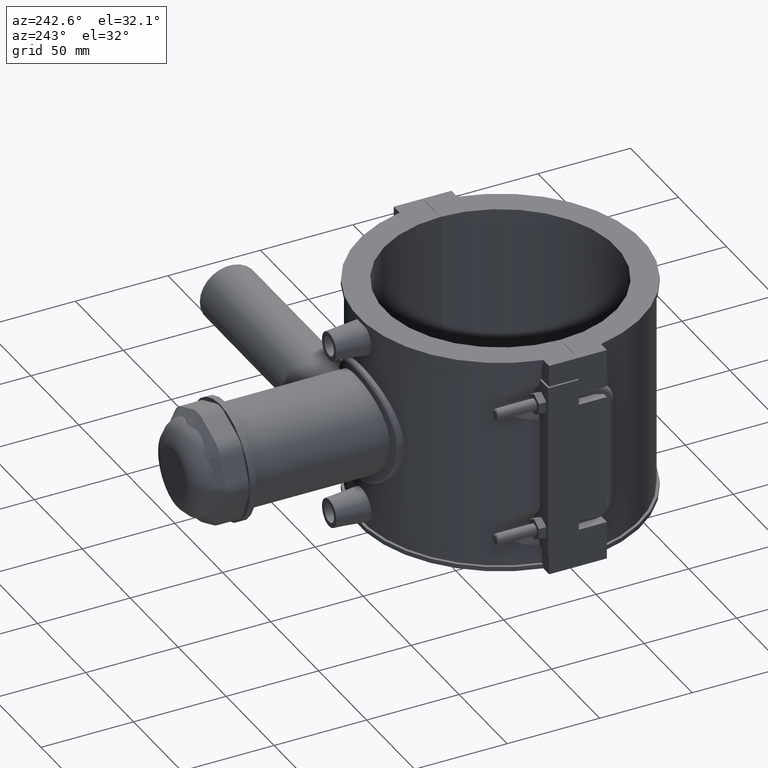
[diagram: clean part render]
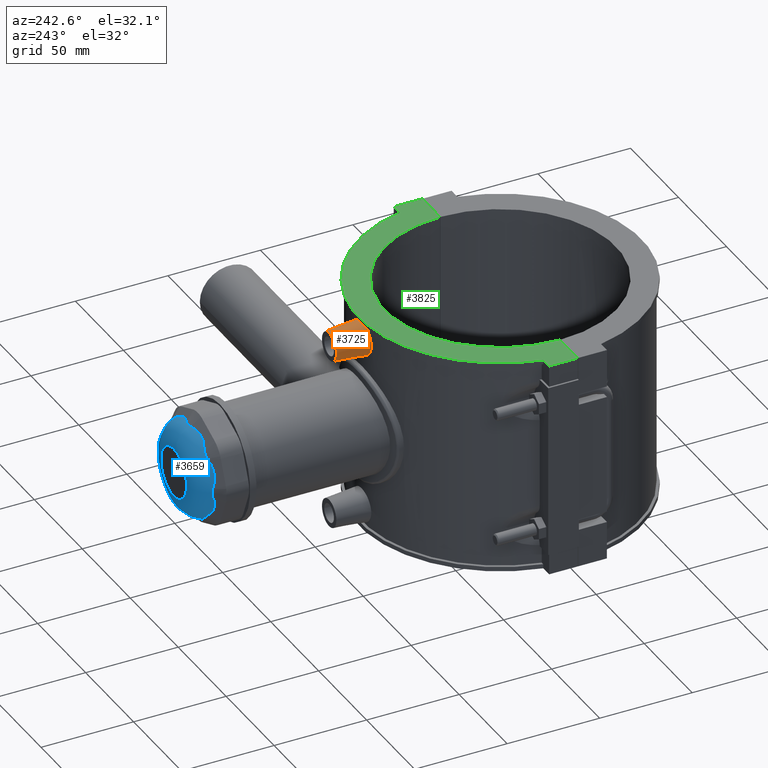
[diagram: same view with three faces highlighted in distinct colors, each labeled with its STEP entity id]
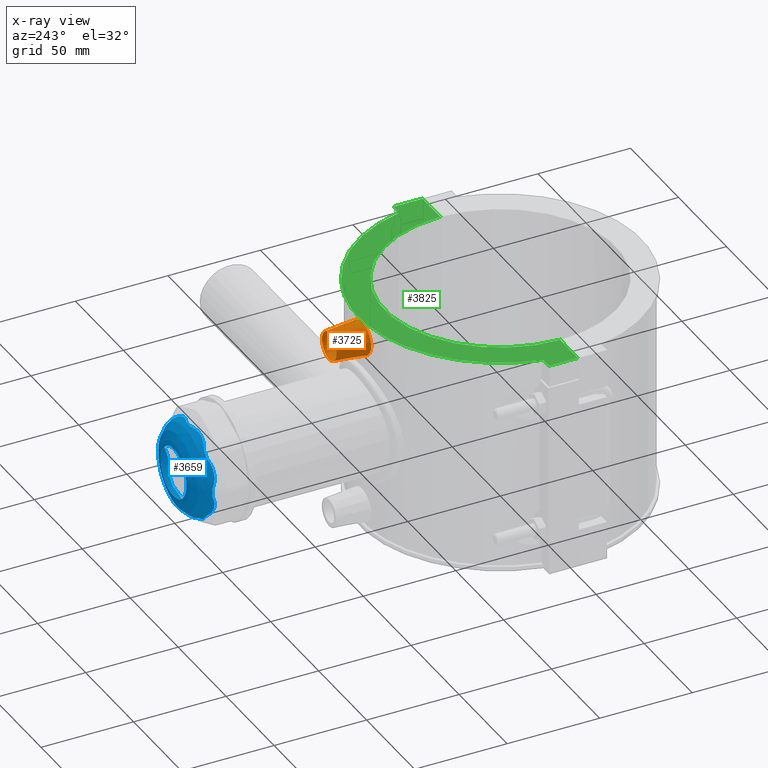
[diagram: x-ray of the same camera — body ghosted, the three highlighted faces saturated]
A machine part, auxiliary view with three faces highlighted in distinct colors.
The next image is the same camera in x-ray (body ghosted, the three faces saturated) — at least one of them is partly hidden behind the body in this view.
Their STEP definitions:

[orange] entity #3725 — the highlighted conical surface has half-angle 5 deg.
#651=CONICAL_SURFACE('',#3998,7.5,5.);
#849=CIRCLE('',#3999,7.5);
#927=FACE_BOUND('',#1323,.T.);
#1076=FACE_OUTER_BOUND('',#1322,.T.);
#1322=EDGE_LOOP('',(#3051));
#1323=EDGE_LOOP('',(#3052));
#1512=B_SPLINE_CURVE_WITH_KNOTS('',3,(#6322,#6323,#6324,#6325,#6326,#6327,
#6328,#6329,#6330,#6331,#6332,#6333,#6334,#6335,#6336,#6337,#6338,#6339,
#6340,#6341,#6342,#6343,#6344,#6345,#6346,#6347,#6348,#6349,#6350,#6351,
#6352,#6353,#6354,#6355),.UNSPECIFIED.,.T.,.F.,(4,2,2,2,2,2,2,2,2,2,2,2,
2,2,2,2,4),(0.,0.341668696491551,0.683337392983103,1.02458425500419,1.36583111702527,
1.70707797904636,2.04832484106744,2.38999353755899,2.73166223405054,3.0733309305421,
3.41499962703365,3.75624648905473,4.09749335107582,4.4387402130969,4.77998707511798,
5.12165577160954,5.46332446810109),.UNSPECIFIED.);
#1687=VERTEX_POINT('',#6321);
#1809=VERTEX_POINT('',#7349);
#2098=EDGE_CURVE('',#1687,#1687,#1512,.T.);
#2266=EDGE_CURVE('',#1809,#1809,#849,.T.);
#3051=ORIENTED_EDGE('',*,*,#2266,.F.);
#3052=ORIENTED_EDGE('',*,*,#2098,.F.);
#3725=ADVANCED_FACE('',(#1076,#927),#651,.T.);
#3998=AXIS2_PLACEMENT_3D('',#7348,#4689,#4690);
#3999=AXIS2_PLACEMENT_3D('',#7350,#4691,#4692);
#4689=DIRECTION('center_axis',(0.,-1.,0.));
#4690=DIRECTION('ref_axis',(1.,0.,0.));
#4691=DIRECTION('center_axis',(0.,1.,0.));
#4692=DIRECTION('ref_axis',(1.,0.,0.));
#6321=CARTESIAN_POINT('',(9.0793092533136,74.4484126323906,47.2));
#6322=CARTESIAN_POINT('Ctrl Pts',(-9.0793092533136,74.4484126323906,47.2));
#6323=CARTESIAN_POINT('Ctrl Pts',(-9.0793092533136,74.4484126323906,46.0611043450282));
#6324=CARTESIAN_POINT('Ctrl Pts',(-8.84946113589686,74.4775577133318,44.8478007545603));
#6325=CARTESIAN_POINT('Ctrl Pts',(-7.91818152844378,74.5823166978625,42.6193985559919));
#6326=CARTESIAN_POINT('Ctrl Pts',(-7.21684973308405,74.6563698188581,41.604185186368));
#6327=CARTESIAN_POINT('Ctrl Pts',(-5.60331245542121,74.7947708340694,40.0044126497905));
#6328=CARTESIAN_POINT('Ctrl Pts',(-4.58361091651927,74.8681481668674,39.3122964536791));
#6329=CARTESIAN_POINT('Ctrl Pts',(-2.35073887920452,74.9714820813101,38.3945491238737));
#6330=CARTESIAN_POINT('Ctrl Pts',(-1.13748954007028,75.,38.1689483882964));
#6331=CARTESIAN_POINT('Ctrl Pts',(1.13748954007028,75.,38.1689483882964));
#6332=CARTESIAN_POINT('Ctrl Pts',(2.35073887920452,74.9714820813101,38.3945491238737));
#6333=CARTESIAN_POINT('Ctrl Pts',(4.58361091651927,74.8681481668674,39.3122964536791));
#6334=CARTESIAN_POINT('Ctrl Pts',(5.60331245542121,74.7947708340694,40.0044126497905));
#6335=CARTESIAN_POINT('Ctrl Pts',(7.21684973308405,74.6563698188581,41.604185186368));
#6336=CARTESIAN_POINT('Ctrl Pts',(7.91818152844378,74.5823166978625,42.6193985559919));
#6337=CARTESIAN_POINT('Ctrl Pts',(8.84946113589686,74.4775577133318,44.8478007545603));
#6338=CARTESIAN_POINT('Ctrl Pts',(9.0793092533136,74.4484126323906,46.0611043450282));
#6339=CARTESIAN_POINT('Ctrl Pts',(9.0793092533136,74.4484126323906,48.3388956549719));
#6340=CARTESIAN_POINT('Ctrl Pts',(8.84946113589685,74.4775577133318,49.5521992454398));
#6341=CARTESIAN_POINT('Ctrl Pts',(7.91818152844378,74.5823166978625,51.7806014440082));
#6342=CARTESIAN_POINT('Ctrl Pts',(7.21684973308406,74.6563698188581,52.795814813632));
#6343=CARTESIAN_POINT('Ctrl Pts',(5.60331245542121,74.7947708340694,54.3955873502096));
#6344=CARTESIAN_POINT('Ctrl Pts',(4.58361091651926,74.8681481668674,55.0877035463209));
#6345=CARTESIAN_POINT('Ctrl Pts',(2.35073887920452,74.9714820813101,56.0054508761263));
#6346=CARTESIAN_POINT('Ctrl Pts',(1.13748954007028,75.,56.2310516117037));
#6347=CARTESIAN_POINT('Ctrl Pts',(-1.13748954007028,75.,56.2310516117037));
#6348=CARTESIAN_POINT('Ctrl Pts',(-2.35073887920452,74.9714820813101,56.0054508761263));
#6349=CARTESIAN_POINT('Ctrl Pts',(-4.58361091651927,74.8681481668674,55.0877035463209));
#6350=CARTESIAN_POINT('Ctrl Pts',(-5.60331245542121,74.7947708340694,54.3955873502096));
#6351=CARTESIAN_POINT('Ctrl Pts',(-7.21684973308406,74.6563698188581,52.795814813632));
#6352=CARTESIAN_POINT('Ctrl Pts',(-7.91818152844378,74.5823166978625,51.7806014440082));
#6353=CARTESIAN_POINT('Ctrl Pts',(-8.84946113589685,74.4775577133318,49.5521992454398));
#6354=CARTESIAN_POINT('Ctrl Pts',(-9.0793092533136,74.4484126323906,48.3388956549719));
#6355=CARTESIAN_POINT('Ctrl Pts',(-9.0793092533136,74.4484126323906,47.2));
#7348=CARTESIAN_POINT('Origin',(0.,92.5,47.2));
#7349=CARTESIAN_POINT('',(-7.5,92.5,47.2));
#7350=CARTESIAN_POINT('Origin',(0.,92.5,47.2));

[blue] entity #3659 — the highlighted toroidal blend (fillet) surface has major radius 13.3458 mm and minor (blend) radius 12.5 mm.
#15=TOROIDAL_SURFACE('',#3901,13.3458333631272,12.5);
#802=CIRCLE('',#3874,25.);
#803=CIRCLE('',#3876,25.);
#804=CIRCLE('',#3878,25.);
#805=CIRCLE('',#3880,25.);
#806=CIRCLE('',#3882,25.);
#807=CIRCLE('',#3884,25.);
#808=CIRCLE('',#3886,25.);
#809=CIRCLE('',#3888,25.);
#814=CIRCLE('',#3902,13.3458333631272);
#911=FACE_BOUND('',#1241,.T.);
#1010=FACE_OUTER_BOUND('',#1240,.T.);
#1240=EDGE_LOOP('',(#2662,#2663,#2664,#2665,#2666,#2667,#2668,#2669,#2670,
#2671,#2672,#2673,#2674,#2675,#2676,#2677,#2678,#2679,#2680,#2681,#2682,
#2683,#2684,#2685,#2686,#2687,#2688,#2689,#2690,#2691,#2692,#2693));
#1241=EDGE_LOOP('',(#2694));
#1466=B_SPLINE_CURVE_WITH_KNOTS('',3,(#5430,#5431,#5432,#5433),
 .UNSPECIFIED.,.F.,.F.,(4,4),(1.08855433793764,1.23089313147004),
 .UNSPECIFIED.);
#1468=B_SPLINE_CURVE_WITH_KNOTS('',3,(#5466,#5467,#5468,#5469),
 .UNSPECIFIED.,.F.,.F.,(4,4),(0.,0.0873490999777743),.UNSPECIFIED.);
#1470=B_SPLINE_CURVE_WITH_KNOTS('',3,(#5477,#5478,#5479,#5480,#5481,#5482,
#5483,#5484,#5485,#5486,#5487,#5488,#5489,#5490,#5491),.UNSPECIFIED.,.F.,
 .F.,(4,2,2,3,2,2,4),(4.52220046310582,4.61628434124346,4.90606041344941,
5.19583648565536,5.48561255786132,5.77538863006727,5.8694725082049),
 .UNSPECIFIED.);
#1471=B_SPLINE_CURVE_WITH_KNOTS('',3,(#5510,#5511,#5512,#5513),
 .UNSPECIFIED.,.F.,.F.,(4,4),(1.08855433793769,1.23089313147009),
 .UNSPECIFIED.);
#1473=B_SPLINE_CURVE_WITH_KNOTS('',3,(#5546,#5547,#5548,#5549),
 .UNSPECIFIED.,.F.,.F.,(4,4),(0.,0.0873490999777791),.UNSPECIFIED.);
#1475=B_SPLINE_CURVE_WITH_KNOTS('',3,(#5557,#5558,#5559,#5560,#5561,#5562,
#5563,#5564,#5565,#5566,#5567,#5568,#5569,#5570,#5571),.UNSPECIFIED.,.F.,
 .F.,(4,2,2,3,2,2,4),(4.52220046310578,4.61628434124297,4.90606041344914,
5.19583648565532,5.48561255786149,5.77538863006766,5.86947250820485),
 .UNSPECIFIED.);
#1476=B_SPLINE_CURVE_WITH_KNOTS('',3,(#5590,#5591,#5592,#5593),
 .UNSPECIFIED.,.F.,.F.,(4,4),(1.08855433793773,1.23089313147014),
 .UNSPECIFIED.);
#1478=B_SPLINE_CURVE_WITH_KNOTS('',3,(#5626,#5627,#5628,#5629),
 .UNSPECIFIED.,.F.,.F.,(4,4),(0.,0.0873490999777642),.UNSPECIFIED.);
#1480=B_SPLINE_CURVE_WITH_KNOTS('',3,(#5637,#5638,#5639,#5640,#5641,#5642,
#5643,#5644,#5645,#5646,#5647,#5648,#5649,#5650,#5651),.UNSPECIFIED.,.F.,
 .F.,(4,2,2,3,2,2,4),(4.52220046310582,4.61628434124346,4.90606041344941,
5.19583648565536,5.48561255786131,5.77538863006726,5.8694725082049),
 .UNSPECIFIED.);
#1481=B_SPLINE_CURVE_WITH_KNOTS('',3,(#5670,#5671,#5672,#5673),
 .UNSPECIFIED.,.F.,.F.,(4,4),(1.08855433793765,1.23089313147006),
 .UNSPECIFIED.);
#1483=B_SPLINE_CURVE_WITH_KNOTS('',3,(#5706,#5707,#5708,#5709),
 .UNSPECIFIED.,.F.,.F.,(4,4),(0.,0.0873490999777652),.UNSPECIFIED.);
#1485=B_SPLINE_CURVE_WITH_KNOTS('',3,(#5717,#5718,#5719,#5720,#5721,#5722,
#5723,#5724,#5725,#5726,#5727,#5728,#5729,#5730,#5731),.UNSPECIFIED.,.F.,
 .F.,(4,2,2,3,2,2,4),(4.5222004631058,4.61628434124345,4.90606041344939,
5.19583648565534,5.48561255786128,5.77538863006723,5.86947250820488),
 .UNSPECIFIED.);
#1486=B_SPLINE_CURVE_WITH_KNOTS('',3,(#5750,#5751,#5752,#5753),
 .UNSPECIFIED.,.F.,.F.,(4,4),(1.08855433793767,1.23089313147008),
 .UNSPECIFIED.);
#1488=B_SPLINE_CURVE_WITH_KNOTS('',3,(#5786,#5787,#5788,#5789),
 .UNSPECIFIED.,.F.,.F.,(4,4),(0.,0.0873490999777749),.UNSPECIFIED.);
#1490=B_SPLINE_CURVE_WITH_KNOTS('',3,(#5797,#5798,#5799,#5800,#5801,#5802,
#5803,#5804,#5805,#5806,#5807,#5808,#5809,#5810,#5811),.UNSPECIFIED.,.F.,
 .F.,(4,2,2,3,2,2,4),(4.52220046310579,4.61628434124342,4.90606041344938,
5.19583648565534,5.4856125578613,5.77538863006725,5.86947250820488),
 .UNSPECIFIED.);
#1491=B_SPLINE_CURVE_WITH_KNOTS('',3,(#5830,#5831,#5832,#5833),
 .UNSPECIFIED.,.F.,.F.,(4,4),(1.08855433793773,1.23089313147015),
 .UNSPECIFIED.);
#1493=B_SPLINE_CURVE_WITH_KNOTS('',3,(#5866,#5867,#5868,#5869),
 .UNSPECIFIED.,.F.,.F.,(4,4),(0.,0.0873490999777837),.UNSPECIFIED.);
#1495=B_SPLINE_CURVE_WITH_KNOTS('',3,(#5877,#5878,#5879,#5880,#5881,#5882,
#5883,#5884,#5885,#5886,#5887,#5888,#5889,#5890,#5891),.UNSPECIFIED.,.F.,
 .F.,(4,2,2,3,2,2,4),(4.52220046310581,4.61628434124344,4.90606041344939,
5.19583648565535,5.4856125578613,5.77538863006725,5.86947250820489),
 .UNSPECIFIED.);
#1496=B_SPLINE_CURVE_WITH_KNOTS('',3,(#5910,#5911,#5912,#5913),
 .UNSPECIFIED.,.F.,.F.,(4,4),(1.08855433793748,1.23089313146985),
 .UNSPECIFIED.);
#1498=B_SPLINE_CURVE_WITH_KNOTS('',3,(#5946,#5947,#5948,#5949),
 .UNSPECIFIED.,.F.,.F.,(4,4),(0.,0.0873490999777666),.UNSPECIFIED.);
#1500=B_SPLINE_CURVE_WITH_KNOTS('',3,(#5957,#5958,#5959,#5960,#5961,#5962,
#5963,#5964,#5965,#5966,#5967,#5968,#5969,#5970,#5971),.UNSPECIFIED.,.F.,
 .F.,(4,2,2,3,2,2,4),(4.52220046310579,4.61628434124341,4.90606041344937,
5.19583648565533,5.48561255786128,5.77538863006724,5.86947250820487),
 .UNSPECIFIED.);
#1501=B_SPLINE_CURVE_WITH_KNOTS('',3,(#5990,#5991,#5992,#5993),
 .UNSPECIFIED.,.F.,.F.,(4,4),(1.08855433793768,1.2308931314701),
 .UNSPECIFIED.);
#1503=B_SPLINE_CURVE_WITH_KNOTS('',3,(#6017,#6018,#6019,#6020),
 .UNSPECIFIED.,.F.,.F.,(4,4),(0.,0.0873490999777558),.UNSPECIFIED.);
#1505=B_SPLINE_CURVE_WITH_KNOTS('',3,(#6028,#6029,#6030,#6031,#6032,#6033,
#6034,#6035,#6036,#6037,#6038,#6039,#6040,#6041,#6042),.UNSPECIFIED.,.F.,
 .F.,(4,2,2,3,2,2,4),(4.5222004631058,4.61628434124343,4.90606041344938,
5.19583648565534,5.48561255786129,5.77538863006725,5.86947250820488),
 .UNSPECIFIED.);
#1584=VERTEX_POINT('',#5406);
#1585=VERTEX_POINT('',#5408);
#1587=VERTEX_POINT('',#5429);
#1590=VERTEX_POINT('',#5442);
#1591=VERTEX_POINT('',#5444);
#1593=VERTEX_POINT('',#5465);
#1595=VERTEX_POINT('',#5509);
#1598=VERTEX_POINT('',#5522);
#1599=VERTEX_POINT('',#5524);
#1601=VERTEX_POINT('',#5545);
#1603=VERTEX_POINT('',#5589);
#1606=VERTEX_POINT('',#5602);
#1607=VERTEX_POINT('',#5604);
#1609=VERTEX_POINT('',#5625);
#1611=VERTEX_POINT('',#5669);
#1614=VERTEX_POINT('',#5682);
#1615=VERTEX_POINT('',#5684);
#1617=VERTEX_POINT('',#5705);
#1619=VERTEX_POINT('',#5749);
#1622=VERTEX_POINT('',#5762);
#1623=VERTEX_POINT('',#5764);
#1625=VERTEX_POINT('',#5785);
#1627=VERTEX_POINT('',#5829);
#1630=VERTEX_POINT('',#5842);
#1631=VERTEX_POINT('',#5844);
#1633=VERTEX_POINT('',#5865);
#1635=VERTEX_POINT('',#5909);
#1638=VERTEX_POINT('',#5922);
#1639=VERTEX_POINT('',#5924);
#1641=VERTEX_POINT('',#5945);
#1643=VERTEX_POINT('',#5989);
#1645=VERTEX_POINT('',#6016);
#1656=VERTEX_POINT('',#6095);
#1941=EDGE_CURVE('',#1585,#1587,#1466,.F.);
#1948=EDGE_CURVE('',#1593,#1590,#1468,.F.);
#1951=EDGE_CURVE('',#1587,#1593,#1470,.F.);
#1953=EDGE_CURVE('',#1591,#1595,#1471,.F.);
#1960=EDGE_CURVE('',#1601,#1598,#1473,.F.);
#1963=EDGE_CURVE('',#1595,#1601,#1475,.F.);
#1965=EDGE_CURVE('',#1599,#1603,#1476,.F.);
#1972=EDGE_CURVE('',#1609,#1606,#1478,.F.);
#1975=EDGE_CURVE('',#1603,#1609,#1480,.F.);
#1977=EDGE_CURVE('',#1607,#1611,#1481,.F.);
#1984=EDGE_CURVE('',#1617,#1614,#1483,.F.);
#1987=EDGE_CURVE('',#1611,#1617,#1485,.F.);
#1989=EDGE_CURVE('',#1615,#1619,#1486,.F.);
#1996=EDGE_CURVE('',#1625,#1622,#1488,.F.);
#1999=EDGE_CURVE('',#1619,#1625,#1490,.F.);
#2001=EDGE_CURVE('',#1623,#1627,#1491,.F.);
#2008=EDGE_CURVE('',#1633,#1630,#1493,.F.);
#2011=EDGE_CURVE('',#1627,#1633,#1495,.F.);
#2013=EDGE_CURVE('',#1631,#1635,#1496,.F.);
#2020=EDGE_CURVE('',#1641,#1638,#1498,.F.);
#2023=EDGE_CURVE('',#1635,#1641,#1500,.F.);
#2025=EDGE_CURVE('',#1639,#1643,#1501,.F.);
#2028=EDGE_CURVE('',#1645,#1584,#1503,.F.);
#2031=EDGE_CURVE('',#1643,#1645,#1505,.F.);
#2033=EDGE_CURVE('',#1607,#1606,#802,.T.);
#2034=EDGE_CURVE('',#1599,#1598,#803,.T.);
#2035=EDGE_CURVE('',#1591,#1590,#804,.T.);
#2036=EDGE_CURVE('',#1585,#1584,#805,.T.);
#2037=EDGE_CURVE('',#1639,#1638,#806,.T.);
#2038=EDGE_CURVE('',#1631,#1630,#807,.T.);
#2039=EDGE_CURVE('',#1623,#1622,#808,.T.);
#2040=EDGE_CURVE('',#1615,#1614,#809,.T.);
#2058=EDGE_CURVE('',#1656,#1656,#814,.T.);
#2662=ORIENTED_EDGE('',*,*,#2035,.T.);
#2663=ORIENTED_EDGE('',*,*,#1948,.F.);
#2664=ORIENTED_EDGE('',*,*,#1951,.F.);
#2665=ORIENTED_EDGE('',*,*,#1941,.F.);
#2666=ORIENTED_EDGE('',*,*,#2036,.T.);
#2667=ORIENTED_EDGE('',*,*,#2028,.F.);
#2668=ORIENTED_EDGE('',*,*,#2031,.F.);
#2669=ORIENTED_EDGE('',*,*,#2025,.F.);
#2670=ORIENTED_EDGE('',*,*,#2037,.T.);
#2671=ORIENTED_EDGE('',*,*,#2020,.F.);
#2672=ORIENTED_EDGE('',*,*,#2023,.F.);
#2673=ORIENTED_EDGE('',*,*,#2013,.F.);
#2674=ORIENTED_EDGE('',*,*,#2038,.T.);
#2675=ORIENTED_EDGE('',*,*,#2008,.F.);
#2676=ORIENTED_EDGE('',*,*,#2011,.F.);
#2677=ORIENTED_EDGE('',*,*,#2001,.F.);
#2678=ORIENTED_EDGE('',*,*,#2039,.T.);
#2679=ORIENTED_EDGE('',*,*,#1996,.F.);
#2680=ORIENTED_EDGE('',*,*,#1999,.F.);
#2681=ORIENTED_EDGE('',*,*,#1989,.F.);
#2682=ORIENTED_EDGE('',*,*,#2040,.T.);
#2683=ORIENTED_EDGE('',*,*,#1984,.F.);
#2684=ORIENTED_EDGE('',*,*,#1987,.F.);
#2685=ORIENTED_EDGE('',*,*,#1977,.F.);
#2686=ORIENTED_EDGE('',*,*,#2033,.T.);
#2687=ORIENTED_EDGE('',*,*,#1972,.F.);
#2688=ORIENTED_EDGE('',*,*,#1975,.F.);
#2689=ORIENTED_EDGE('',*,*,#1965,.F.);
#2690=ORIENTED_EDGE('',*,*,#2034,.T.);
#2691=ORIENTED_EDGE('',*,*,#1960,.F.);
#2692=ORIENTED_EDGE('',*,*,#1963,.F.);
#2693=ORIENTED_EDGE('',*,*,#1953,.F.);
#2694=ORIENTED_EDGE('',*,*,#2058,.T.);
#3659=ADVANCED_FACE('',(#1010,#911),#15,.T.);
#3874=AXIS2_PLACEMENT_3D('',#6045,#4285,#4286);
#3876=AXIS2_PLACEMENT_3D('',#6047,#4289,#4290);
#3878=AXIS2_PLACEMENT_3D('',#6049,#4293,#4294);
#3880=AXIS2_PLACEMENT_3D('',#6051,#4297,#4298);
#3882=AXIS2_PLACEMENT_3D('',#6053,#4301,#4302);
#3884=AXIS2_PLACEMENT_3D('',#6055,#4305,#4306);
#3886=AXIS2_PLACEMENT_3D('',#6057,#4309,#4310);
#3888=AXIS2_PLACEMENT_3D('',#6059,#4313,#4314);
#3901=AXIS2_PLACEMENT_3D('',#6094,#4352,#4353);
#3902=AXIS2_PLACEMENT_3D('',#6096,#4354,#4355);
#4285=DIRECTION('center_axis',(0.,1.,3.06161699786838E-16));
#4286=DIRECTION('ref_axis',(1.,0.,0.));
#4289=DIRECTION('center_axis',(0.,1.,3.06161699786838E-16));
#4290=DIRECTION('ref_axis',(1.,0.,0.));
#4293=DIRECTION('center_axis',(0.,1.,3.06161699786838E-16));
#4294=DIRECTION('ref_axis',(1.,0.,0.));
#4297=DIRECTION('center_axis',(0.,1.,3.06161699786838E-16));
#4298=DIRECTION('ref_axis',(1.,0.,0.));
#4301=DIRECTION('center_axis',(0.,1.,3.06161699786838E-16));
#4302=DIRECTION('ref_axis',(1.,0.,0.));
#4305=DIRECTION('center_axis',(0.,1.,3.06161699786838E-16));
#4306=DIRECTION('ref_axis',(1.,0.,0.));
#4309=DIRECTION('center_axis',(0.,1.,3.06161699786838E-16));
#4310=DIRECTION('ref_axis',(1.,0.,0.));
#4313=DIRECTION('center_axis',(0.,1.,3.06161699786838E-16));
#4314=DIRECTION('ref_axis',(1.,0.,0.));
#4352=DIRECTION('center_axis',(0.,1.,3.06161699786838E-16));
#4353=DIRECTION('ref_axis',(-6.12323399573677E-17,0.,1.));
#4354=DIRECTION('center_axis',(0.,-1.,-3.06161699786838E-16));
#4355=DIRECTION('ref_axis',(-6.12323399573677E-17,-3.32754948879419E-16,
1.));
#5406=CARTESIAN_POINT('',(-19.126208678676,168.52,-16.099321152761));
#5408=CARTESIAN_POINT('',(-16.099321152761,168.52,-19.126208678676));
#5429=CARTESIAN_POINT('',(-15.5196838126061,168.20758258967,-19.7477336477909));
#5430=CARTESIAN_POINT('Ctrl Pts',(-15.5196838126062,168.20758258967,-19.7477336477908));
#5431=CARTESIAN_POINT('Ctrl Pts',(-15.7224557817307,168.327642621569,-19.5337907060166));
#5432=CARTESIAN_POINT('Ctrl Pts',(-15.9151953273503,168.432147372631,-19.3257322216333));
#5433=CARTESIAN_POINT('Ctrl Pts',(-16.099321152761,168.52,-19.126208678676));
#5442=CARTESIAN_POINT('',(-2.14033269546344,168.52,-24.9082110146981));
#5444=CARTESIAN_POINT('',(2.14033269546349,168.52,-24.9082110146981));
#5465=CARTESIAN_POINT('',(-2.98968270965376,168.20758258967,-24.9378300411836));
#5466=CARTESIAN_POINT('Ctrl Pts',(-2.14033269546344,168.52,-24.9082110146981));
#5467=CARTESIAN_POINT('Ctrl Pts',(-2.41713157276955,168.430360466263,-24.9193203016705));
#5468=CARTESIAN_POINT('Ctrl Pts',(-2.70023309130938,168.325518860951,-24.93007069856));
#5469=CARTESIAN_POINT('Ctrl Pts',(-2.98968270965375,168.20758258967,-24.9378300411836));
#5477=CARTESIAN_POINT('Ctrl Pts',(-2.98968270965461,168.20758258967,-24.9378300411836));
#5478=CARTESIAN_POINT('Ctrl Pts',(-3.30765873628699,168.078023230939,-24.9463540978081));
#5479=CARTESIAN_POINT('Ctrl Pts',(-3.62686123918216,167.960011468837,-24.9418711028071));
#5480=CARTESIAN_POINT('Ctrl Pts',(-4.83691219495735,167.54775242088,-24.8868775637717));
#5481=CARTESIAN_POINT('Ctrl Pts',(-5.85136238792362,167.290865148452,-24.7447313155233));
#5482=CARTESIAN_POINT('Ctrl Pts',(-7.86763062559708,166.95829329166,-24.2695388499253));
#5483=CARTESIAN_POINT('Ctrl Pts',(-8.86947972560032,166.882230191359,-23.9368894717484));
#5484=CARTESIAN_POINT('Ctrl Pts',(-9.76187366600896,166.882230191359,-23.5672477986516));
#5485=CARTESIAN_POINT('Ctrl Pts',(-10.6542676064176,166.882230191359,-23.1976061255547));
#5486=CARTESIAN_POINT('Ctrl Pts',(-11.5979005298219,166.95829329166,-22.7244104642832));
#5487=CARTESIAN_POINT('Ctrl Pts',(-13.359629288165,167.290865148452,-21.6347053355264));
#5488=CARTESIAN_POINT('Ctrl Pts',(-14.1774664748441,167.54775242088,-21.0178933009606));
#5489=CARTESIAN_POINT('Ctrl Pts',(-15.0719880156274,167.960011468837,-20.2011443689241));
#5490=CARTESIAN_POINT('Ctrl Pts',(-15.3008682261614,168.078023230939,-19.9786040707204));
#5491=CARTESIAN_POINT('Ctrl Pts',(-15.5196838126056,168.20758258967,-19.7477336477915));
#5509=CARTESIAN_POINT('',(2.98968270965381,168.20758258967,-24.9378300411836));
#5510=CARTESIAN_POINT('Ctrl Pts',(2.98968270965379,168.20758258967,-24.9378300411836));
#5511=CARTESIAN_POINT('Ctrl Pts',(2.69502077033574,168.327642621569,-24.9299309706705));
#5512=CARTESIAN_POINT('Ctrl Pts',(2.41161376543449,168.432147372631,-24.9190988451901));
#5513=CARTESIAN_POINT('Ctrl Pts',(2.14033269546349,168.52,-24.9082110146981));
#5522=CARTESIAN_POINT('',(16.099321152761,168.52,-19.126208678676));
#5524=CARTESIAN_POINT('',(19.126208678676,168.52,-16.099321152761));
#5545=CARTESIAN_POINT('',(15.5196838126062,168.20758258967,-19.7477336477908));
#5546=CARTESIAN_POINT('Ctrl Pts',(16.099321152761,168.52,-19.126208678676));
#5547=CARTESIAN_POINT('Ctrl Pts',(15.9114502417453,168.430360466263,-19.3297904939963));
#5548=CARTESIAN_POINT('Ctrl Pts',(15.7188689167627,168.325518860951,-19.537575176061));
#5549=CARTESIAN_POINT('Ctrl Pts',(15.5196838126062,168.20758258967,-19.7477336477909));
#5557=CARTESIAN_POINT('Ctrl Pts',(15.5196838126056,168.20758258967,-19.7477336477915));
#5558=CARTESIAN_POINT('Ctrl Pts',(15.3008682261625,168.07802323094,-19.9786040707193));
#5559=CARTESIAN_POINT('Ctrl Pts',(15.0719880156297,167.960011468839,-20.2011443689218));
#5560=CARTESIAN_POINT('Ctrl Pts',(14.1774664748473,167.547752420881,-21.0178933009581));
#5561=CARTESIAN_POINT('Ctrl Pts',(13.3596292881678,167.290865148453,-21.6347053355244));
#5562=CARTESIAN_POINT('Ctrl Pts',(11.5979005298236,166.95829329166,-22.7244104642823));
#5563=CARTESIAN_POINT('Ctrl Pts',(10.6542676064179,166.88223019136,-23.1976061255535));
#5564=CARTESIAN_POINT('Ctrl Pts',(9.76187366600857,166.88223019136,-23.5672477986506));
#5565=CARTESIAN_POINT('Ctrl Pts',(8.86947972559924,166.88223019136,-23.9368894717477));
#5566=CARTESIAN_POINT('Ctrl Pts',(7.86763062559531,166.95829329166,-24.2695388499259));
#5567=CARTESIAN_POINT('Ctrl Pts',(5.85136238792033,167.290865148453,-24.7447313155239));
#5568=CARTESIAN_POINT('Ctrl Pts',(4.83691219495331,167.547752420881,-24.8868775637722));
#5569=CARTESIAN_POINT('Ctrl Pts',(3.62686123917896,167.960011468839,-24.9418711028072));
#5570=CARTESIAN_POINT('Ctrl Pts',(3.30765873628549,168.07802323094,-24.946354097808));
#5571=CARTESIAN_POINT('Ctrl Pts',(2.98968270965467,168.20758258967,-24.9378300411836));
#5589=CARTESIAN_POINT('',(19.7477336477909,168.20758258967,-15.5196838126061));
#5590=CARTESIAN_POINT('Ctrl Pts',(19.7477336477909,168.20758258967,-15.5196838126061));
#5591=CARTESIAN_POINT('Ctrl Pts',(19.5337907060166,168.327642621569,-15.7224557817306));
#5592=CARTESIAN_POINT('Ctrl Pts',(19.3257322216333,168.432147372631,-15.9151953273502));
#5593=CARTESIAN_POINT('Ctrl Pts',(19.126208678676,168.52,-16.099321152761));
#5602=CARTESIAN_POINT('',(24.9082110146982,168.52,-2.14033269546337));
#5604=CARTESIAN_POINT('',(24.9082110146982,168.52,2.14033269546347));
#5625=CARTESIAN_POINT('',(24.9378300411836,168.20758258967,-2.98968270965374));
#5626=CARTESIAN_POINT('Ctrl Pts',(24.9082110146981,168.52,-2.14033269546338));
#5627=CARTESIAN_POINT('Ctrl Pts',(24.9193203016705,168.430360466263,-2.41713157276946));
#5628=CARTESIAN_POINT('Ctrl Pts',(24.93007069856,168.325518860951,-2.70023309130931));
#5629=CARTESIAN_POINT('Ctrl Pts',(24.9378300411836,168.20758258967,-2.98968270965376));
#5637=CARTESIAN_POINT('Ctrl Pts',(24.9378300411836,168.20758258967,-2.9896827096546));
#5638=CARTESIAN_POINT('Ctrl Pts',(24.9463540978081,168.078023230939,-3.30765873628699));
#5639=CARTESIAN_POINT('Ctrl Pts',(24.9418711028072,167.960011468837,-3.62686123918216));
#5640=CARTESIAN_POINT('Ctrl Pts',(24.8868775637717,167.54775242088,-4.83691219495736));
#5641=CARTESIAN_POINT('Ctrl Pts',(24.7447313155233,167.290865148452,-5.85136238792362));
#5642=CARTESIAN_POINT('Ctrl Pts',(24.2695388499253,166.95829329166,-7.86763062559706));
#5643=CARTESIAN_POINT('Ctrl Pts',(23.9368894717484,166.882230191359,-8.86947972560028));
#5644=CARTESIAN_POINT('Ctrl Pts',(23.5672477986516,166.882230191359,-9.76187366600891));
#5645=CARTESIAN_POINT('Ctrl Pts',(23.1976061255548,166.882230191359,-10.6542676064175));
#5646=CARTESIAN_POINT('Ctrl Pts',(22.7244104642832,166.95829329166,-11.5979005298218));
#5647=CARTESIAN_POINT('Ctrl Pts',(21.6347053355264,167.290865148452,-13.3596292881649));
#5648=CARTESIAN_POINT('Ctrl Pts',(21.0178933009606,167.54775242088,-14.177466474844));
#5649=CARTESIAN_POINT('Ctrl Pts',(20.2011443689241,167.960011468837,-15.0719880156273));
#5650=CARTESIAN_POINT('Ctrl Pts',(19.9786040707204,168.078023230939,-15.3008682261614));
#5651=CARTESIAN_POINT('Ctrl Pts',(19.7477336477915,168.20758258967,-15.5196838126055));
#5669=CARTESIAN_POINT('',(24.9378300411836,168.20758258967,2.98968270965383));
#5670=CARTESIAN_POINT('Ctrl Pts',(24.9378300411836,168.20758258967,2.98968270965384));
#5671=CARTESIAN_POINT('Ctrl Pts',(24.9299309706705,168.327642621569,2.69502077033577));
#5672=CARTESIAN_POINT('Ctrl Pts',(24.9190988451901,168.432147372631,2.41161376543449));
#5673=CARTESIAN_POINT('Ctrl Pts',(24.9082110146982,168.52,2.14033269546348));
#5682=CARTESIAN_POINT('',(19.126208678676,168.52,16.0993211527611));
#5684=CARTESIAN_POINT('',(16.0993211527611,168.52,19.126208678676));
#5705=CARTESIAN_POINT('',(19.7477336477909,168.20758258967,15.5196838126062));
#5706=CARTESIAN_POINT('Ctrl Pts',(19.126208678676,168.52,16.0993211527611));
#5707=CARTESIAN_POINT('Ctrl Pts',(19.3297904939962,168.430360466263,15.9114502417454));
#5708=CARTESIAN_POINT('Ctrl Pts',(19.537575176061,168.325518860951,15.7188689167627));
#5709=CARTESIAN_POINT('Ctrl Pts',(19.7477336477909,168.20758258967,15.5196838126062));
#5717=CARTESIAN_POINT('Ctrl Pts',(19.7477336477915,168.20758258967,15.5196838126056));
#5718=CARTESIAN_POINT('Ctrl Pts',(19.9786040707205,168.078023230939,15.3008682261615));
#5719=CARTESIAN_POINT('Ctrl Pts',(20.2011443689242,167.960011468837,15.0719880156274));
#5720=CARTESIAN_POINT('Ctrl Pts',(21.0178933009607,167.54775242088,14.177466474844));
#5721=CARTESIAN_POINT('Ctrl Pts',(21.6347053355264,167.290865148452,13.3596292881649));
#5722=CARTESIAN_POINT('Ctrl Pts',(22.7244104642832,166.95829329166,11.5979005298219));
#5723=CARTESIAN_POINT('Ctrl Pts',(23.1976061255548,166.882230191359,10.6542676064176));
#5724=CARTESIAN_POINT('Ctrl Pts',(23.5672477986516,166.882230191359,9.76187366600901));
#5725=CARTESIAN_POINT('Ctrl Pts',(23.9368894717484,166.882230191359,8.86947972560039));
#5726=CARTESIAN_POINT('Ctrl Pts',(24.2695388499253,166.95829329166,7.86763062559718));
#5727=CARTESIAN_POINT('Ctrl Pts',(24.7447313155233,167.290865148452,5.85136238792377));
#5728=CARTESIAN_POINT('Ctrl Pts',(24.8868775637717,167.54775242088,4.83691219495752));
#5729=CARTESIAN_POINT('Ctrl Pts',(24.9418711028072,167.960011468837,3.62686123918231));
#5730=CARTESIAN_POINT('Ctrl Pts',(24.9463540978081,168.078023230939,3.30765873628713));
#5731=CARTESIAN_POINT('Ctrl Pts',(24.9378300411836,168.20758258967,2.9896827096547));
#5749=CARTESIAN_POINT('',(15.5196838126061,168.20758258967,19.7477336477909));
#5750=CARTESIAN_POINT('Ctrl Pts',(15.5196838126062,168.20758258967,19.7477336477909));
#5751=CARTESIAN_POINT('Ctrl Pts',(15.7224557817307,168.327642621569,19.5337907060166));
#5752=CARTESIAN_POINT('Ctrl Pts',(15.9151953273503,168.432147372632,19.3257322216334));
#5753=CARTESIAN_POINT('Ctrl Pts',(16.099321152761,168.52,19.126208678676));
#5762=CARTESIAN_POINT('',(2.14033269546345,168.52,24.9082110146982));
#5764=CARTESIAN_POINT('',(-2.14033269546348,168.52,24.9082110146982));
#5785=CARTESIAN_POINT('',(2.98968270965377,168.20758258967,24.9378300411836));
#5786=CARTESIAN_POINT('Ctrl Pts',(2.14033269546345,168.52,24.9082110146982));
#5787=CARTESIAN_POINT('Ctrl Pts',(2.41713157276957,168.430360466263,24.9193203016705));
#5788=CARTESIAN_POINT('Ctrl Pts',(2.70023309130939,168.325518860951,24.9300706985601));
#5789=CARTESIAN_POINT('Ctrl Pts',(2.98968270965376,168.20758258967,24.9378300411836));
#5797=CARTESIAN_POINT('Ctrl Pts',(2.98968270965462,168.20758258967,24.9378300411836));
#5798=CARTESIAN_POINT('Ctrl Pts',(3.30765873628695,168.078023230939,24.9463540978082));
#5799=CARTESIAN_POINT('Ctrl Pts',(3.62686123918203,167.960011468837,24.9418711028072));
#5800=CARTESIAN_POINT('Ctrl Pts',(4.83691219495719,167.54775242088,24.8868775637718));
#5801=CARTESIAN_POINT('Ctrl Pts',(5.85136238792349,167.290865148452,24.7447313155234));
#5802=CARTESIAN_POINT('Ctrl Pts',(7.86763062559701,166.95829329166,24.2695388499254));
#5803=CARTESIAN_POINT('Ctrl Pts',(8.86947972560028,166.882230191359,23.9368894717485));
#5804=CARTESIAN_POINT('Ctrl Pts',(9.76187366600895,166.882230191359,23.5672477986516));
#5805=CARTESIAN_POINT('Ctrl Pts',(10.6542676064176,166.882230191359,23.1976061255548));
#5806=CARTESIAN_POINT('Ctrl Pts',(11.5979005298219,166.95829329166,22.7244104642832));
#5807=CARTESIAN_POINT('Ctrl Pts',(13.3596292881651,167.290865148452,21.6347053355263));
#5808=CARTESIAN_POINT('Ctrl Pts',(14.1774664748442,167.54775242088,21.0178933009605));
#5809=CARTESIAN_POINT('Ctrl Pts',(15.0719880156275,167.960011468837,20.2011443689241));
#5810=CARTESIAN_POINT('Ctrl Pts',(15.3008682261615,168.078023230939,19.9786040707204));
#5811=CARTESIAN_POINT('Ctrl Pts',(15.5196838126056,168.20758258967,19.7477336477915));
#5829=CARTESIAN_POINT('',(-2.9896827096538,168.20758258967,24.9378300411836));
#5830=CARTESIAN_POINT('Ctrl Pts',(-2.98968270965378,168.20758258967,24.9378300411836));
#5831=CARTESIAN_POINT('Ctrl Pts',(-2.69502077033573,168.327642621569,24.9299309706705));
#5832=CARTESIAN_POINT('Ctrl Pts',(-2.41161376543448,168.432147372631,24.9190988451901));
#5833=CARTESIAN_POINT('Ctrl Pts',(-2.14033269546347,168.52,24.9082110146982));
#5842=CARTESIAN_POINT('',(-16.099321152761,168.52,19.1262086786761));
#5844=CARTESIAN_POINT('',(-19.126208678676,168.52,16.0993211527611));
#5865=CARTESIAN_POINT('',(-15.5196838126062,168.20758258967,19.7477336477909));
#5866=CARTESIAN_POINT('Ctrl Pts',(-16.099321152761,168.52,19.126208678676));
#5867=CARTESIAN_POINT('Ctrl Pts',(-15.9114502417453,168.430360466263,19.3297904939963));
#5868=CARTESIAN_POINT('Ctrl Pts',(-15.7188689167627,168.325518860951,19.5375751760611));
#5869=CARTESIAN_POINT('Ctrl Pts',(-15.5196838126062,168.20758258967,19.7477336477909));
#5877=CARTESIAN_POINT('Ctrl Pts',(-15.5196838126056,168.20758258967,19.7477336477915));
#5878=CARTESIAN_POINT('Ctrl Pts',(-15.3008682261615,168.078023230939,19.9786040707204));
#5879=CARTESIAN_POINT('Ctrl Pts',(-15.0719880156274,167.960011468837,20.2011443689241));
#5880=CARTESIAN_POINT('Ctrl Pts',(-14.1774664748442,167.54775242088,21.0178933009606));
#5881=CARTESIAN_POINT('Ctrl Pts',(-13.359629288165,167.290865148452,21.6347053355264));
#5882=CARTESIAN_POINT('Ctrl Pts',(-11.5979005298219,166.95829329166,22.7244104642832));
#5883=CARTESIAN_POINT('Ctrl Pts',(-10.6542676064176,166.882230191359,23.1976061255548));
#5884=CARTESIAN_POINT('Ctrl Pts',(-9.76187366600897,166.882230191359,23.5672477986516));
#5885=CARTESIAN_POINT('Ctrl Pts',(-8.86947972560032,166.882230191359,23.9368894717485));
#5886=CARTESIAN_POINT('Ctrl Pts',(-7.86763062559707,166.95829329166,24.2695388499254));
#5887=CARTESIAN_POINT('Ctrl Pts',(-5.85136238792359,167.290865148452,24.7447313155234));
#5888=CARTESIAN_POINT('Ctrl Pts',(-4.8369121949573,167.54775242088,24.8868775637718));
#5889=CARTESIAN_POINT('Ctrl Pts',(-3.62686123918213,167.960011468837,24.9418711028072));
#5890=CARTESIAN_POINT('Ctrl Pts',(-3.30765873628701,168.078023230939,24.9463540978081));
#5891=CARTESIAN_POINT('Ctrl Pts',(-2.98968270965466,168.20758258967,24.9378300411836));
#5909=CARTESIAN_POINT('',(-19.7477336477909,168.20758258967,15.5196838126062));
#5910=CARTESIAN_POINT('Ctrl Pts',(-19.7477336477909,168.20758258967,15.5196838126062));
#5911=CARTESIAN_POINT('Ctrl Pts',(-19.5337907060166,168.327642621569,15.7224557817307));
#5912=CARTESIAN_POINT('Ctrl Pts',(-19.3257322216333,168.432147372631,15.9151953273503));
#5913=CARTESIAN_POINT('Ctrl Pts',(-19.126208678676,168.52,16.0993211527611));
#5922=CARTESIAN_POINT('',(-24.9082110146982,168.52,2.14033269546345));
#5924=CARTESIAN_POINT('',(-24.9082110146982,168.52,-2.1403326954634));
#5945=CARTESIAN_POINT('',(-24.9378300411836,168.20758258967,2.98968270965382));
#5946=CARTESIAN_POINT('Ctrl Pts',(-24.9082110146982,168.52,2.14033269546345));
#5947=CARTESIAN_POINT('Ctrl Pts',(-24.9193203016705,168.430360466263,2.41713157276954));
#5948=CARTESIAN_POINT('Ctrl Pts',(-24.93007069856,168.325518860951,2.70023309130936));
#5949=CARTESIAN_POINT('Ctrl Pts',(-24.9378300411836,168.20758258967,2.9896827096538));
#5957=CARTESIAN_POINT('Ctrl Pts',(-24.9378300411836,168.20758258967,2.98968270965468));
#5958=CARTESIAN_POINT('Ctrl Pts',(-24.9463540978081,168.078023230939,3.307658736287));
#5959=CARTESIAN_POINT('Ctrl Pts',(-24.9418711028072,167.960011468837,3.62686123918209));
#5960=CARTESIAN_POINT('Ctrl Pts',(-24.8868775637718,167.54775242088,4.83691219495724));
#5961=CARTESIAN_POINT('Ctrl Pts',(-24.7447313155233,167.290865148452,5.85136238792354));
#5962=CARTESIAN_POINT('Ctrl Pts',(-24.2695388499253,166.95829329166,7.86763062559705));
#5963=CARTESIAN_POINT('Ctrl Pts',(-23.9368894717484,166.882230191359,8.86947972560032));
#5964=CARTESIAN_POINT('Ctrl Pts',(-23.5672477986516,166.882230191359,9.76187366600898));
#5965=CARTESIAN_POINT('Ctrl Pts',(-23.1976061255548,166.882230191359,10.6542676064176));
#5966=CARTESIAN_POINT('Ctrl Pts',(-22.7244104642832,166.95829329166,11.597900529822));
#5967=CARTESIAN_POINT('Ctrl Pts',(-21.6347053355263,167.290865148452,13.3596292881651));
#5968=CARTESIAN_POINT('Ctrl Pts',(-21.0178933009605,167.54775242088,14.1774664748442));
#5969=CARTESIAN_POINT('Ctrl Pts',(-20.201144368924,167.960011468837,15.0719880156275));
#5970=CARTESIAN_POINT('Ctrl Pts',(-19.9786040707204,168.078023230939,15.3008682261615));
#5971=CARTESIAN_POINT('Ctrl Pts',(-19.7477336477915,168.20758258967,15.5196838126056));
#5989=CARTESIAN_POINT('',(-24.9378300411836,168.20758258967,-2.98968270965376));
#5990=CARTESIAN_POINT('Ctrl Pts',(-24.9378300411836,168.20758258967,-2.98968270965374));
#5991=CARTESIAN_POINT('Ctrl Pts',(-24.9299309706705,168.327642621569,-2.69502077033568));
#5992=CARTESIAN_POINT('Ctrl Pts',(-24.9190988451901,168.432147372631,-2.41161376543441));
#5993=CARTESIAN_POINT('Ctrl Pts',(-24.9082110146982,168.52,-2.14033269546339));
#6016=CARTESIAN_POINT('',(-19.7477336477909,168.20758258967,-15.5196838126061));
#6017=CARTESIAN_POINT('Ctrl Pts',(-19.126208678676,168.52,-16.099321152761));
#6018=CARTESIAN_POINT('Ctrl Pts',(-19.3297904939962,168.430360466263,-15.9114502417454));
#6019=CARTESIAN_POINT('Ctrl Pts',(-19.537575176061,168.325518860951,-15.7188689167627));
#6020=CARTESIAN_POINT('Ctrl Pts',(-19.7477336477909,168.20758258967,-15.5196838126061));
#6028=CARTESIAN_POINT('Ctrl Pts',(-19.7477336477915,168.20758258967,-15.5196838126055));
#6029=CARTESIAN_POINT('Ctrl Pts',(-19.9786040707204,168.078023230939,-15.3008682261614));
#6030=CARTESIAN_POINT('Ctrl Pts',(-20.2011443689241,167.960011468837,-15.0719880156274));
#6031=CARTESIAN_POINT('Ctrl Pts',(-21.0178933009606,167.54775242088,-14.1774664748441));
#6032=CARTESIAN_POINT('Ctrl Pts',(-21.6347053355263,167.290865148452,-13.359629288165));
#6033=CARTESIAN_POINT('Ctrl Pts',(-22.7244104642832,166.95829329166,-11.5979005298219));
#6034=CARTESIAN_POINT('Ctrl Pts',(-23.1976061255548,166.882230191359,-10.6542676064176));
#6035=CARTESIAN_POINT('Ctrl Pts',(-23.5672477986516,166.882230191359,-9.76187366600892));
#6036=CARTESIAN_POINT('Ctrl Pts',(-23.9368894717484,166.882230191359,-8.86947972560028));
#6037=CARTESIAN_POINT('Ctrl Pts',(-24.2695388499253,166.95829329166,-7.86763062559703));
#6038=CARTESIAN_POINT('Ctrl Pts',(-24.7447313155233,167.290865148452,-5.85136238792353));
#6039=CARTESIAN_POINT('Ctrl Pts',(-24.8868775637718,167.54775242088,-4.83691219495724));
#6040=CARTESIAN_POINT('Ctrl Pts',(-24.9418711028072,167.960011468837,-3.62686123918207));
#6041=CARTESIAN_POINT('Ctrl Pts',(-24.9463540978081,168.078023230939,-3.30765873628696));
#6042=CARTESIAN_POINT('Ctrl Pts',(-24.9378300411836,168.20758258967,-2.98968270965462));
#6045=CARTESIAN_POINT('Origin',(0.,168.52,3.24592634114006E-14));
#6047=CARTESIAN_POINT('Origin',(0.,168.52,3.24592634114006E-14));
#6049=CARTESIAN_POINT('Origin',(0.,168.52,3.24592634114006E-14));
#6051=CARTESIAN_POINT('Origin',(0.,168.52,3.24592634114006E-14));
#6053=CARTESIAN_POINT('Origin',(0.,168.52,3.24592634114006E-14));
#6055=CARTESIAN_POINT('Origin',(0.,168.52,3.24592634114006E-14));
#6057=CARTESIAN_POINT('Origin',(0.,168.52,3.24592634114006E-14));
#6059=CARTESIAN_POINT('Origin',(0.,168.52,3.24592634114006E-14));
#6094=CARTESIAN_POINT('Origin',(0.,164.,3.10754125283641E-14));
#6095=CARTESIAN_POINT('',(2.45158981651615E-15,176.5,-13.3458333631271));
#6096=CARTESIAN_POINT('Origin',(0.,176.5,3.49024337756996E-14));

[green] entity #3825 — the highlighted planar face has unit normal (0, 0, 1).
#144=LINE('',#6687,#443);
#181=LINE('',#6935,#480);
#224=LINE('',#7219,#523);
#226=LINE('',#7222,#525);
#281=LINE('',#7651,#580);
#339=LINE('',#8062,#638);
#443=VECTOR('',#4502,6.11268882514207);
#480=VECTOR('',#4561,15.575);
#523=VECTOR('',#4640,15.575);
#525=VECTOR('',#4644,6.11268882514207);
#580=VECTOR('',#4879,18.5000200000032);
#638=VECTOR('',#5093,18.5000200000032);
#779=PLANE('',#4151);
#833=CIRCLE('',#3944,76.5);
#903=CIRCLE('',#4152,62.5);
#1176=FACE_OUTER_BOUND('',#1450,.T.);
#1450=EDGE_LOOP('',(#3525,#3526,#3527,#3528,#3529,#3530,#3531,#3532));
#1706=VERTEX_POINT('',#6656);
#1707=VERTEX_POINT('',#6657);
#1717=VERTEX_POINT('',#6685);
#1759=VERTEX_POINT('',#6933);
#1795=VERTEX_POINT('',#7216);
#1796=VERTEX_POINT('',#7218);
#1862=VERTEX_POINT('',#7649);
#1919=VERTEX_POINT('',#8061);
#2124=EDGE_CURVE('',#1706,#1707,#833,.T.);
#2139=EDGE_CURVE('',#1707,#1717,#144,.T.);
#2192=EDGE_CURVE('',#1717,#1759,#181,.T.);
#2244=EDGE_CURVE('',#1796,#1795,#224,.T.);
#2246=EDGE_CURVE('',#1795,#1706,#226,.T.);
#2351=EDGE_CURVE('',#1759,#1862,#281,.T.);
#2451=EDGE_CURVE('',#1919,#1796,#339,.T.);
#2455=EDGE_CURVE('',#1862,#1919,#903,.T.);
#3525=ORIENTED_EDGE('',*,*,#2451,.T.);
#3526=ORIENTED_EDGE('',*,*,#2244,.T.);
#3527=ORIENTED_EDGE('',*,*,#2246,.T.);
#3528=ORIENTED_EDGE('',*,*,#2124,.T.);
#3529=ORIENTED_EDGE('',*,*,#2139,.T.);
#3530=ORIENTED_EDGE('',*,*,#2192,.T.);
#3531=ORIENTED_EDGE('',*,*,#2351,.T.);
#3532=ORIENTED_EDGE('',*,*,#2455,.T.);
#3825=ADVANCED_FACE('',(#1176),#779,.T.);
#3944=AXIS2_PLACEMENT_3D('',#6658,#4474,#4475);
#4151=AXIS2_PLACEMENT_3D('',#8068,#5097,#5098);
#4152=AXIS2_PLACEMENT_3D('',#8069,#5099,#5100);
#4474=DIRECTION('center_axis',(0.,0.,1.));
#4475=DIRECTION('ref_axis',(0.97891910032494,0.204248366013072,0.));
#4502=DIRECTION('',(-1.,0.,0.));
#4561=DIRECTION('',(0.,-1.,0.));
#4640=DIRECTION('',(0.,1.,0.));
#4644=DIRECTION('',(-1.,0.,0.));
#4879=DIRECTION('',(1.,-2.14163392095902E-19,0.));
#5093=DIRECTION('',(1.,-2.14163392095902E-19,0.));
#5097=DIRECTION('center_axis',(0.,0.,1.));
#5098=DIRECTION('ref_axis',(1.,0.,0.));
#5099=DIRECTION('center_axis',(0.,0.,-1.));
#5100=DIRECTION('ref_axis',(-1.,0.,0.));
#6656=CARTESIAN_POINT('',(74.8873111748579,15.625,59.));
#6657=CARTESIAN_POINT('',(-74.8873111748579,15.625,59.));
#6658=CARTESIAN_POINT('Origin',(0.,0.,59.));
#6685=CARTESIAN_POINT('',(-81.,15.625,59.));
#6687=CARTESIAN_POINT('',(-73.3543412144094,15.625,59.));
#6933=CARTESIAN_POINT('',(-81.,0.0500000000000078,59.));
#6935=CARTESIAN_POINT('',(-81.,15.625,59.));
#7216=CARTESIAN_POINT('',(81.,15.625,59.));
#7218=CARTESIAN_POINT('',(81.,0.0500000000000078,59.));
#7219=CARTESIAN_POINT('',(81.,-15.625,59.));
#7222=CARTESIAN_POINT('',(81.,15.625,59.));
#7649=CARTESIAN_POINT('',(-62.4999799999968,0.0500000000000078,59.));
#7651=CARTESIAN_POINT('',(1.51877421223587,0.0500000000000078,59.));
#8061=CARTESIAN_POINT('',(62.4999799999968,0.0500000000000078,59.));
#8062=CARTESIAN_POINT('',(1.51877421223587,0.0500000000000078,59.));
#8068=CARTESIAN_POINT('Origin',(-77.9624515755282,3.65355741629484E-16,
59.));
#8069=CARTESIAN_POINT('Origin',(0.,0.,59.));